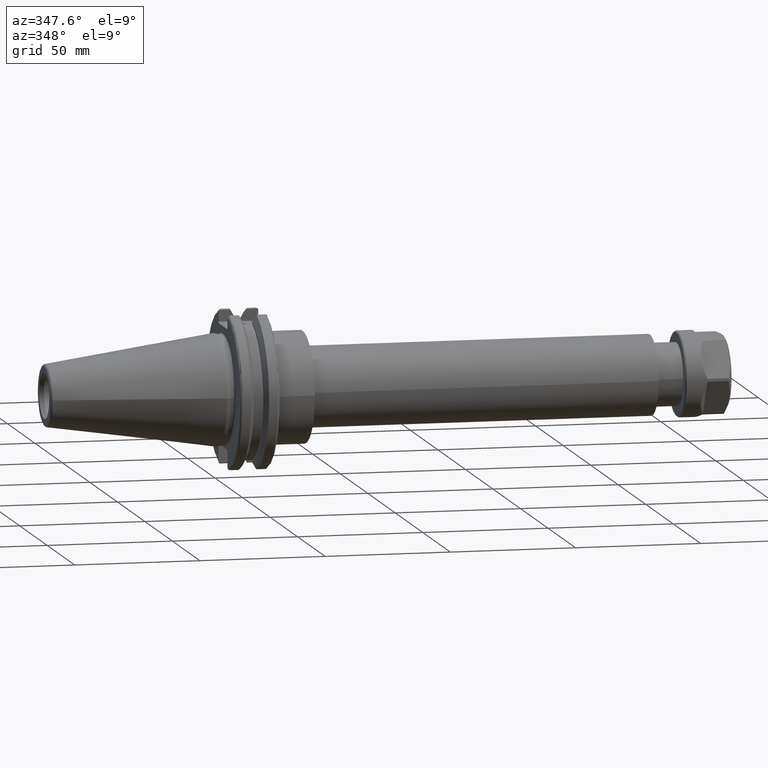
[diagram: clean part render]
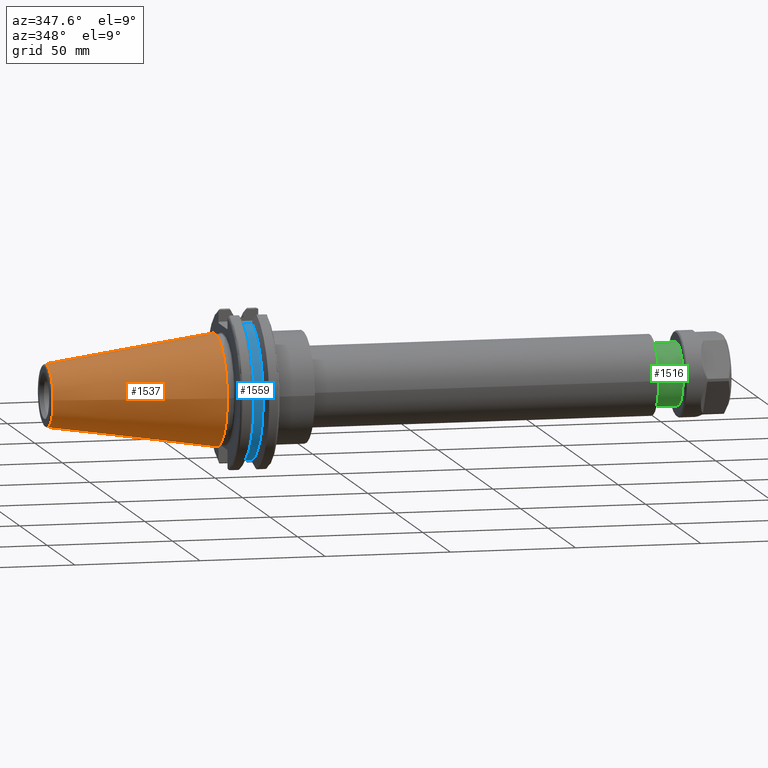
[diagram: same view with three faces highlighted in distinct colors, each labeled with its STEP entity id]
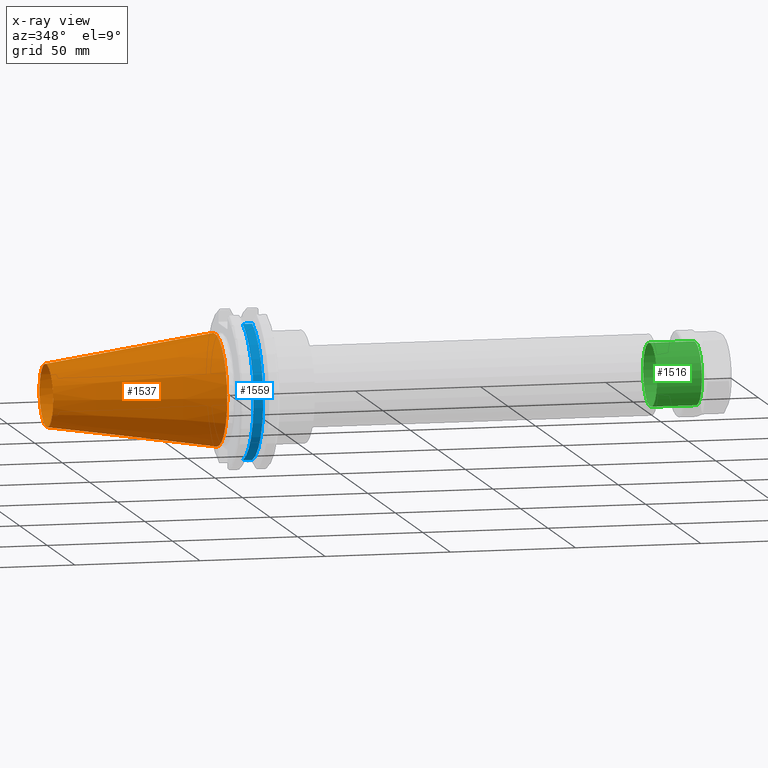
[diagram: x-ray of the same camera — body ghosted, the three highlighted faces saturated]
A machine part, auxiliary view with three faces highlighted in distinct colors.
The next image is the same camera in x-ray (body ghosted, the three faces saturated) — at least one of them is partly hidden behind the body in this view.
Their STEP definitions:

[orange] entity #1537 — the highlighted conical surface has half-angle 8.297 deg.
#182=CONICAL_SURFACE('',#1738,17.2484375,0.144812498238939);
#224=FACE_OUTER_BOUND('',#323,.T.);
#323=EDGE_LOOP('',(#1209,#1210,#1211,#1212,#1213));
#445=LINE('',#2663,#545);
#545=VECTOR('',#2042,17.2484375);
#622=CIRCLE('',#1732,12.3966635780937);
#623=CIRCLE('',#1733,12.3966635780937);
#627=CIRCLE('',#1739,22.225);
#751=VERTEX_POINT('',#2650);
#752=VERTEX_POINT('',#2651);
#755=VERTEX_POINT('',#2661);
#924=EDGE_CURVE('',#751,#752,#622,.T.);
#925=EDGE_CURVE('',#752,#751,#623,.T.);
#929=EDGE_CURVE('',#755,#755,#627,.T.);
#930=EDGE_CURVE('',#755,#752,#445,.T.);
#1209=ORIENTED_EDGE('',*,*,#929,.F.);
#1210=ORIENTED_EDGE('',*,*,#930,.T.);
#1211=ORIENTED_EDGE('',*,*,#924,.F.);
#1212=ORIENTED_EDGE('',*,*,#925,.F.);
#1213=ORIENTED_EDGE('',*,*,#930,.F.);
#1537=ADVANCED_FACE('',(#224),#182,.T.);
#1732=AXIS2_PLACEMENT_3D('',#2652,#2026,#2027);
#1733=AXIS2_PLACEMENT_3D('',#2653,#2028,#2029);
#1738=AXIS2_PLACEMENT_3D('',#2660,#2038,#2039);
#1739=AXIS2_PLACEMENT_3D('',#2662,#2040,#2041);
#2026=DIRECTION('center_axis',(-1.,0.,0.));
#2027=DIRECTION('ref_axis',(0.,-1.,3.06161699786838E-17));
#2028=DIRECTION('center_axis',(-1.,0.,0.));
#2029=DIRECTION('ref_axis',(0.,-1.,3.06161699786838E-17));
#2038=DIRECTION('center_axis',(1.,0.,0.));
#2039=DIRECTION('ref_axis',(0.,1.,0.));
#2040=DIRECTION('center_axis',(1.,0.,0.));
#2041=DIRECTION('ref_axis',(0.,0.,-1.));
#2042=DIRECTION('',(-0.989532981063282,0.144306893071729,1.76724974695192E-17));
#2650=CARTESIAN_POINT('',(-67.3943068930717,-1.5181534371019E-15,12.3966635780937));
#2651=CARTESIAN_POINT('',(-67.3943068930718,-12.3966635780937,-1.5181534371019E-15));
#2652=CARTESIAN_POINT('Origin',(-67.3943068930717,0.,-1.89769179637738E-15));
#2653=CARTESIAN_POINT('Origin',(-67.3943068930717,0.,-1.89769179637738E-15));
#2660=CARTESIAN_POINT('Origin',(-34.125,0.,0.));
#2661=CARTESIAN_POINT('',(0.,-22.225,-2.72177751110499E-15));
#2662=CARTESIAN_POINT('Origin',(0.,0.,0.));
#2663=CARTESIAN_POINT('',(-34.125,-17.2484375,-2.11232437746682E-15));

[blue] entity #1559 — the highlighted cylindrical surface (partial cylindrical patch) has radius 28.15 mm, axis along (1, 0, 0).
#246=FACE_OUTER_BOUND('',#345,.T.);
#345=EDGE_LOOP('',(#1311,#1312,#1313,#1314));
#433=LINE('',#2548,#533);
#438=LINE('',#2566,#538);
#533=VECTOR('',#1992,10.);
#538=VECTOR('',#1999,10.);
#637=CIRCLE('',#1769,28.15);
#639=CIRCLE('',#1773,28.15);
#732=VERTEX_POINT('',#2545);
#733=VERTEX_POINT('',#2547);
#738=VERTEX_POINT('',#2563);
#739=VERTEX_POINT('',#2565);
#897=EDGE_CURVE('',#733,#732,#433,.T.);
#904=EDGE_CURVE('',#739,#738,#438,.T.);
#962=EDGE_CURVE('',#732,#739,#637,.T.);
#964=EDGE_CURVE('',#733,#738,#639,.T.);
#1311=ORIENTED_EDGE('',*,*,#904,.T.);
#1312=ORIENTED_EDGE('',*,*,#964,.F.);
#1313=ORIENTED_EDGE('',*,*,#897,.T.);
#1314=ORIENTED_EDGE('',*,*,#962,.T.);
#1497=CYLINDRICAL_SURFACE('',#1772,28.15);
#1559=ADVANCED_FACE('',(#246),#1497,.T.);
#1769=AXIS2_PLACEMENT_3D('',#2740,#2117,#2118);
#1772=AXIS2_PLACEMENT_3D('',#2743,#2123,#2124);
#1773=AXIS2_PLACEMENT_3D('',#2744,#2125,#2126);
#1992=DIRECTION('',(-1.,0.,0.));
#1999=DIRECTION('',(1.,0.,0.));
#2117=DIRECTION('center_axis',(1.,0.,0.));
#2118=DIRECTION('ref_axis',(0.,0.,-1.));
#2123=DIRECTION('center_axis',(1.,0.,0.));
#2124=DIRECTION('ref_axis',(0.,-1.,-1.22464679914735E-16));
#2125=DIRECTION('center_axis',(1.,0.,0.));
#2126=DIRECTION('ref_axis',(0.,0.,-1.));
#2545=CARTESIAN_POINT('',(9.212,-8.19,26.932255754021));
#2547=CARTESIAN_POINT('',(13.042,-8.19,26.932255754021));
#2548=CARTESIAN_POINT('',(11.127,-8.19,26.932255754021));
#2563=CARTESIAN_POINT('',(13.042,-8.19,-26.932255754021));
#2565=CARTESIAN_POINT('',(9.212,-8.19,-26.932255754021));
#2566=CARTESIAN_POINT('',(11.127,-8.19,-26.932255754021));
#2740=CARTESIAN_POINT('Origin',(9.212,0.,0.));
#2743=CARTESIAN_POINT('Origin',(11.127,0.,0.));
#2744=CARTESIAN_POINT('Origin',(13.042,0.,0.));

[green] entity #1516 — the highlighted cylindrical surface (bore or boss wall) has radius 12.5 mm, axis along (1, 0, 0).
#203=FACE_OUTER_BOUND('',#298,.T.);
#298=EDGE_LOOP('',(#1076,#1077,#1078,#1079));
#400=LINE('',#2362,#500);
#500=VECTOR('',#1913,12.5);
#605=CIRCLE('',#1695,12.5);
#606=CIRCLE('',#1697,12.5);
#682=VERTEX_POINT('',#2357);
#683=VERTEX_POINT('',#2360);
#836=EDGE_CURVE('',#682,#682,#605,.T.);
#837=EDGE_CURVE('',#683,#683,#606,.T.);
#838=EDGE_CURVE('',#683,#682,#400,.T.);
#1076=ORIENTED_EDGE('',*,*,#837,.F.);
#1077=ORIENTED_EDGE('',*,*,#838,.T.);
#1078=ORIENTED_EDGE('',*,*,#836,.T.);
#1079=ORIENTED_EDGE('',*,*,#838,.F.);
#1489=CYLINDRICAL_SURFACE('',#1696,12.5);
#1516=ADVANCED_FACE('',(#203),#1489,.T.);
#1695=AXIS2_PLACEMENT_3D('',#2358,#1907,#1908);
#1696=AXIS2_PLACEMENT_3D('',#2359,#1909,#1910);
#1697=AXIS2_PLACEMENT_3D('',#2361,#1911,#1912);
#1907=DIRECTION('center_axis',(1.,0.,0.));
#1908=DIRECTION('ref_axis',(0.,0.,-1.));
#1909=DIRECTION('center_axis',(1.,0.,0.));
#1910=DIRECTION('ref_axis',(0.,1.,0.));
#1911=DIRECTION('center_axis',(1.,0.,0.));
#1912=DIRECTION('ref_axis',(0.,0.,-1.));
#1913=DIRECTION('',(-1.,0.,0.));
#2357=CARTESIAN_POINT('',(173.7,-12.5,-1.53080849893419E-15));
#2358=CARTESIAN_POINT('Origin',(173.7,0.,0.));
#2359=CARTESIAN_POINT('Origin',(182.7,0.,0.));
#2360=CARTESIAN_POINT('',(191.7,-12.5,-1.53080849893419E-15));
#2361=CARTESIAN_POINT('Origin',(191.7,0.,0.));
#2362=CARTESIAN_POINT('',(182.7,-12.5,-1.53080849893419E-15));